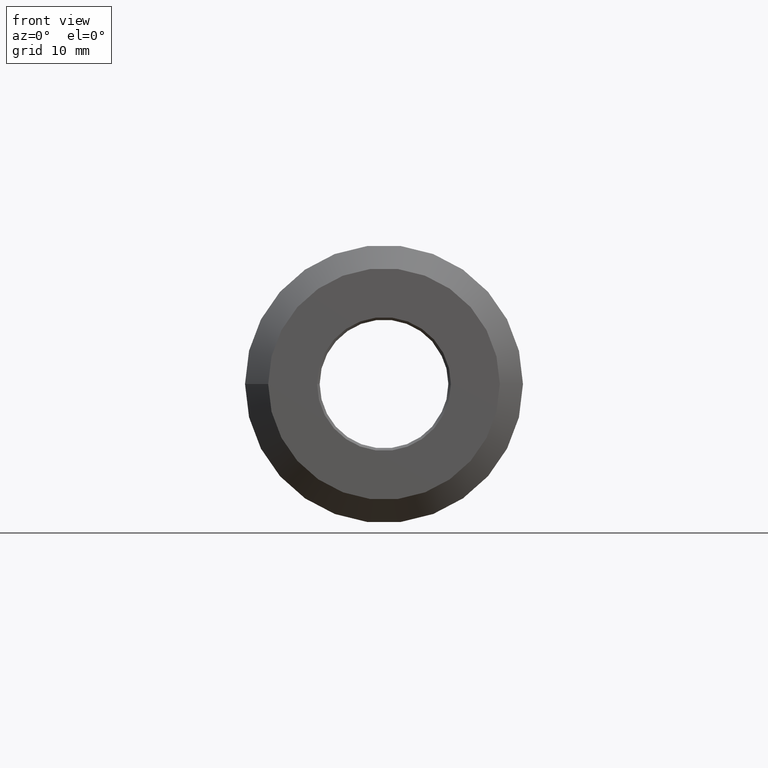
[diagram: clean part render]
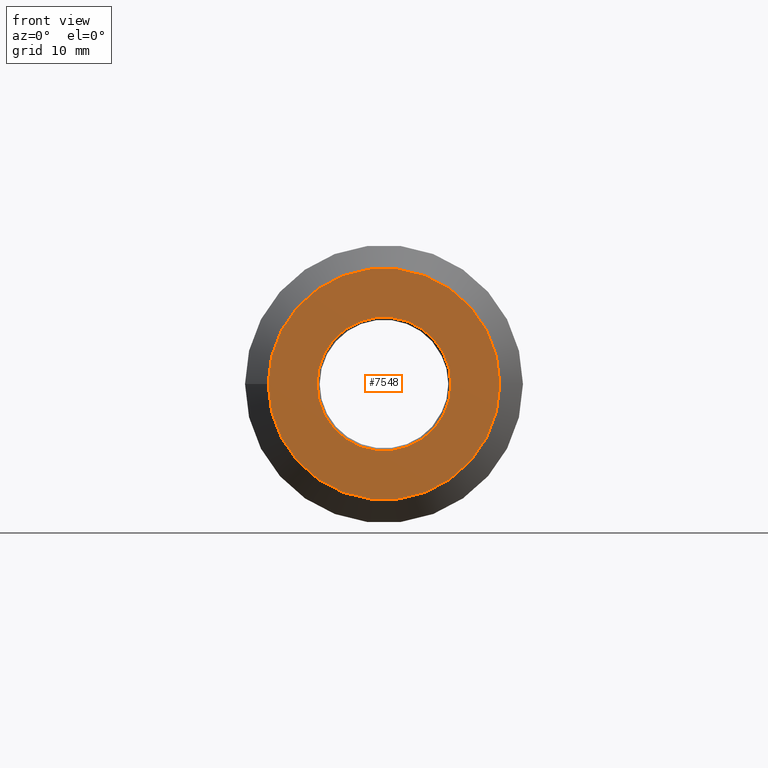
[diagram: same view with one face highlighted and labeled with its STEP entity id]
A machine part, front view. The second image highlights one B-rep face of the part: STEP entity #7548.
In plain terms, the highlighted planar face has unit normal (-0, 1, 0).
Its self-contained STEP definition (entity closure, byte-faithful):
#58 = CARTESIAN_POINT ( 'NONE',  ( -11.24999999999998757, -30.00000000000000355, 0.000000000000000000 ) ) ;
#155 = FACE_OUTER_BOUND ( 'NONE', #228, .T. ) ;
#228 = EDGE_LOOP ( 'NONE', ( #4843 ) ) ;
#597 = DIRECTION ( 'NONE',  ( -1.000000000000000000, -3.083952846180991267E-16, 0.000000000000000000 ) ) ;
#855 = DIRECTION ( 'NONE',  ( -3.061616997868382648E-16, 1.000000000000000000, 0.000000000000000000 ) ) ;
#955 = VERTEX_POINT ( 'NONE', #58 ) ;
#1242 = AXIS2_PLACEMENT_3D ( 'NONE', #2836, #8370, #4679 ) ;
#1765 = CARTESIAN_POINT ( 'NONE',  ( 8.201811311432038569E-31, -30.00000000000000355, 0.000000000000000000 ) ) ;
#1846 = DIRECTION ( 'NONE',  ( -1.000000000000000000, -3.061616997868382648E-16, 0.000000000000000000 ) ) ;
#2836 = CARTESIAN_POINT ( 'NONE',  ( 9.193579562657095606E-15, -30.00000000000000355, 0.000000000000000000 ) ) ;
#3885 = EDGE_CURVE ( 'NONE', #955, #955, #5486, .T. ) ;
#4037 = ORIENTED_EDGE ( 'NONE', *, *, #11203, .T. ) ;
#4501 = CIRCLE ( 'NONE', #1242, 6.500000000000007105 ) ;
#4679 = DIRECTION ( 'NONE',  ( -1.000000000000000000, -5.337610695313246454E-16, 0.000000000000000000 ) ) ;
#4843 = ORIENTED_EDGE ( 'NONE', *, *, #3885, .F. ) ;
#5486 = CIRCLE ( 'NONE', #10269, 11.24999999999999645 ) ;
#6209 = EDGE_LOOP ( 'NONE', ( #4037 ) ) ;
#6341 = DIRECTION ( 'NONE',  ( -3.061616997868382648E-16, 1.000000000000000000, -0.000000000000000000 ) ) ;
#6431 = PLANE ( 'NONE',  #8617 ) ;
#7548 = ADVANCED_FACE ( 'NONE', ( #11945, #155 ), #6431, .F. ) ;
#8200 = CARTESIAN_POINT ( 'NONE',  ( 9.193579562657094028E-15, -30.00000000000000000, 0.000000000000000000 ) ) ;
#8370 = DIRECTION ( 'NONE',  ( -3.061616997868382648E-16, 1.000000000000000000, -0.000000000000000000 ) ) ;
#8554 = CARTESIAN_POINT ( 'NONE',  ( -6.499999999999998224, -30.00000000000000711, 0.000000000000000000 ) ) ;
#8617 = AXIS2_PLACEMENT_3D ( 'NONE', #1765, #855, #1846 ) ;
#10128 = VERTEX_POINT ( 'NONE', #8554 ) ;
#10269 = AXIS2_PLACEMENT_3D ( 'NONE', #8200, #6341, #597 ) ;
#11203 = EDGE_CURVE ( 'NONE', #10128, #10128, #4501, .T. ) ;
#11945 = FACE_BOUND ( 'NONE', #6209, .T. ) ;